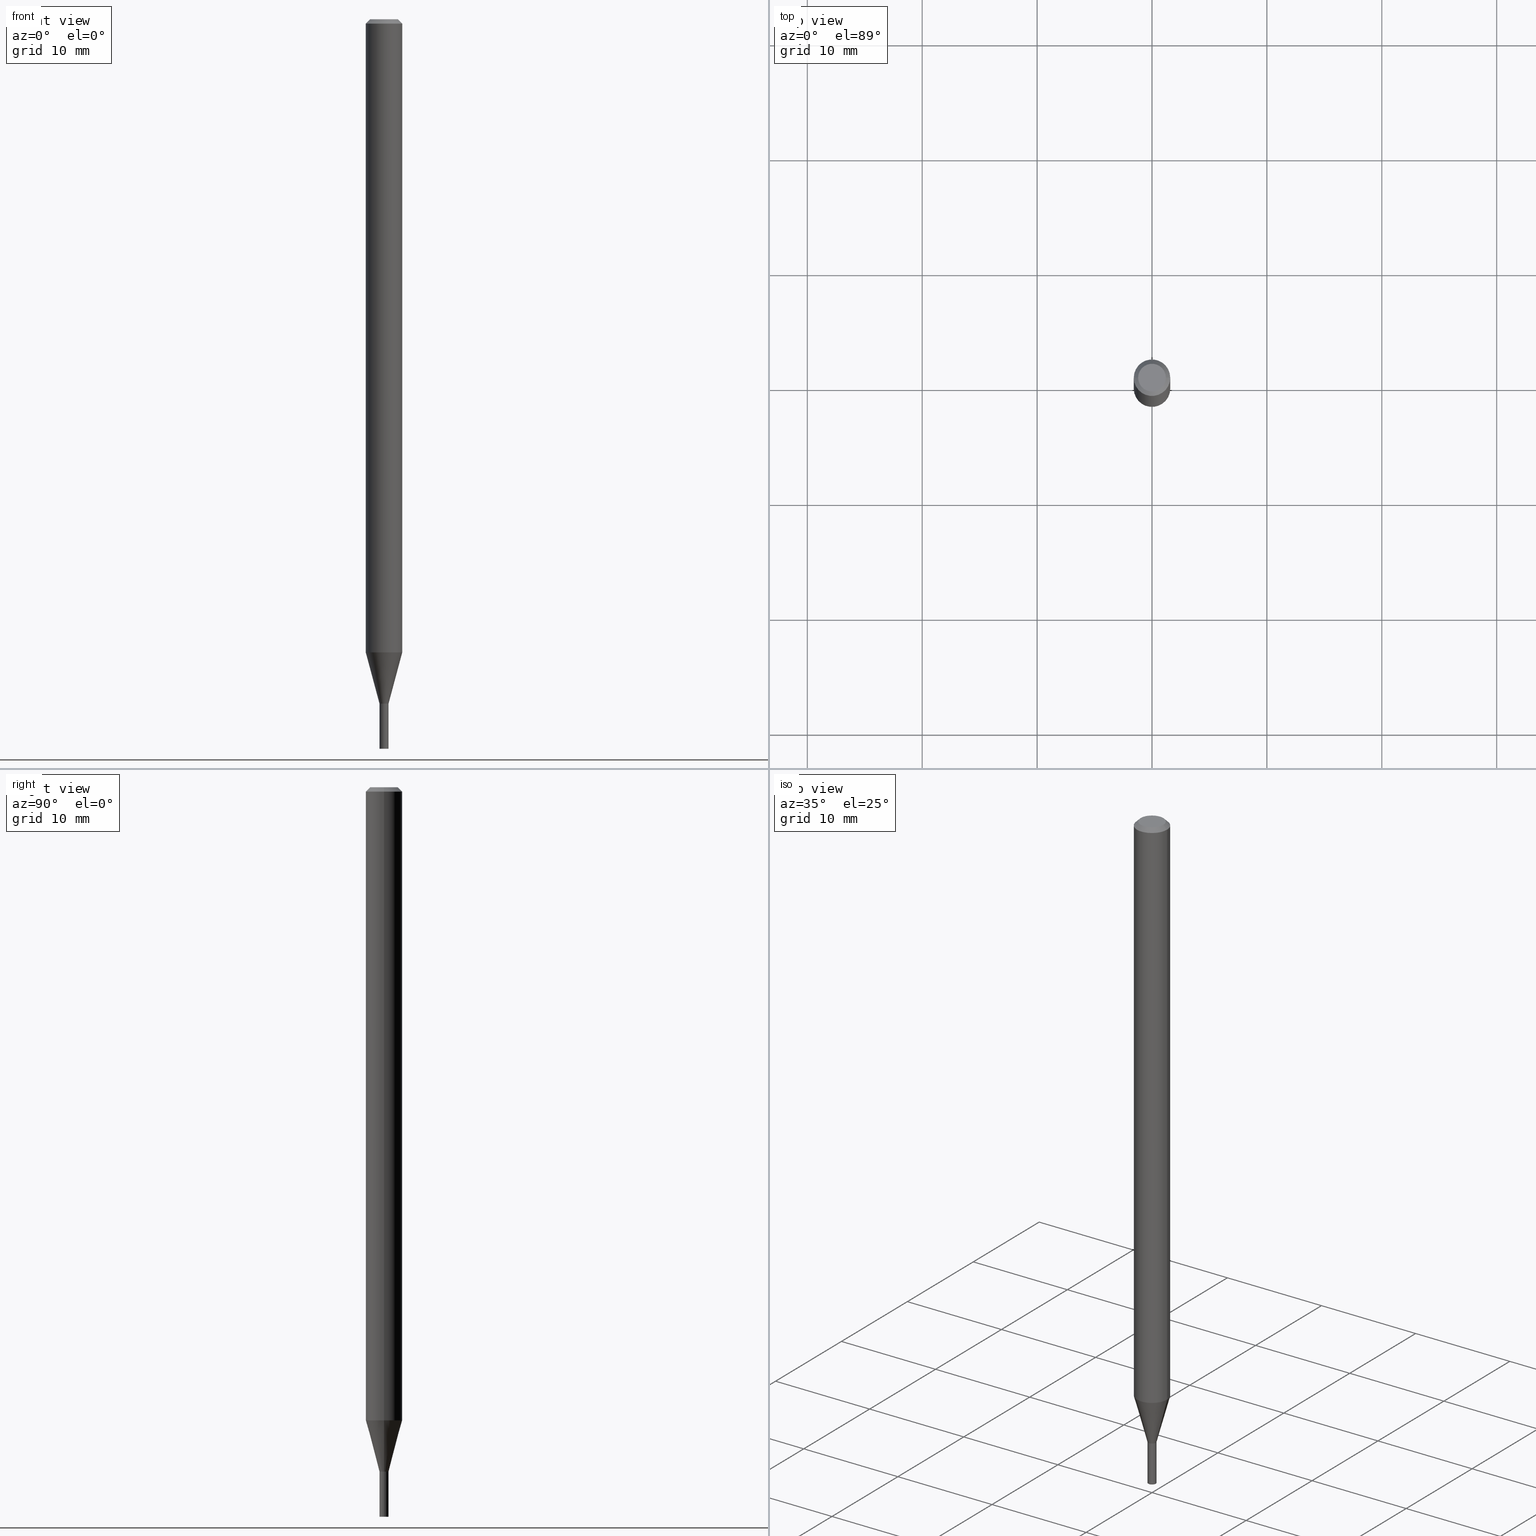
[diagram: canonical four-view strip — front | top / right | iso, engineering-drawing reading convention]
A machine part, canonical four-view strip (front | top / right | iso — engineering-drawing reading convention). The complete STEP part file that produces these views, byte-faithful:
ISO-10303-21;
HEADER;
FILE_DESCRIPTION (( 'STEP AP203' ),
    '1' );
FILE_NAME ('01232.STEP',
    '2024-03-20T00:20:06',
    ( '' ),
    ( '' ),
    'SwSTEP 2.0',
    'SolidWorks 2023',
    '' );
FILE_SCHEMA (( 'CONFIG_CONTROL_DESIGN' ));
ENDSEC;

DATA;
#1 = PRODUCT ( '01232', '01232', '', ( #280 ) ) ;
#2 = ORIENTED_EDGE ( 'NONE', *, *, #366, .F. ) ;
#3 = CARTESIAN_POINT ( 'NONE',  ( 5.733401616101054222E-29, -8.185777998917756034E-15, -2.344500000000000473 ) ) ;
#4 = CALENDAR_DATE ( 2024, 19, 3 ) ;
#5 = ORIENTED_EDGE ( 'NONE', *, *, #402, .T. ) ;
#6 = CIRCLE ( 'NONE', #264, 0.01550000000000019591 ) ;
#7 = DATE_AND_TIME ( #4, #94 ) ;
#8 = EDGE_LOOP ( 'NONE', ( #44, #70, #5, #215 ) ) ;
#9 = CARTESIAN_POINT ( 'NONE',  ( -0.04749999999999999362, 3.578768372314230227E-16, 1.123127311571377654E-15 ) ) ;
#10 = CALENDAR_DATE ( 2024, 19, 3 ) ;
#11 = ORIENTED_EDGE ( 'NONE', *, *, #51, .F. ) ;
#12 = DIRECTION ( 'NONE',  ( -2.445468806185136597E-29, 3.491481338843145583E-15, 1.000000000000000000 ) ) ;
#13 = EDGE_LOOP ( 'NONE', ( #432, #80, #224, #2 ) ) ;
#14 = DIRECTION ( 'NONE',  ( -2.438088387897960049E-29, 3.491481338843145188E-15, 1.000000000000000000 ) ) ;
#15 = CARTESIAN_POINT ( 'NONE',  ( 0.000000000000000000, 0.000000000000000000, 0.000000000000000000 ) ) ;
#16 = APPROVAL_PERSON_ORGANIZATION ( #100, #256, #112 ) ;
#17 = ORIENTED_EDGE ( 'NONE', *, *, #453, .T. ) ;
#18 = DIRECTION ( 'NONE',  ( 1.000000000000000000, -6.982962677686268288E-15, 0.000000000000000000 ) ) ;
#19 = FACE_OUTER_BOUND ( 'NONE', #425, .T. ) ;
#20 = CARTESIAN_POINT ( 'NONE',  ( 0.000000000000000000, 0.000000000000000000, 0.000000000000000000 ) ) ;
#21 = ADVANCED_FACE ( 'NONE', ( #19 ), #267, .T. ) ;
#22 = AXIS2_PLACEMENT_3D ( 'NONE', #24, #174, #131 ) ;
#23 = ORGANIZATION ( 'UNSPECIFIED', 'UNSPECIFIED', '' ) ;
#24 = CARTESIAN_POINT ( 'NONE',  ( 3.668203209277705088E-31, -5.237222008264718399E-17, -0.01499999999999999944 ) ) ;
#25 = APPROVAL_PERSON_ORGANIZATION ( #33, #130, #404 ) ;
#26 = CARTESIAN_POINT ( 'NONE',  ( 5.734624350504145902E-29, -8.187523739587176748E-15, -2.345000000000000195 ) ) ;
#27 = VERTEX_POINT ( 'NONE', #440 ) ;
#28 = ADVANCED_FACE ( 'NONE', ( #118 ), #168, .T. ) ;
#29 = DIRECTION ( 'NONE',  ( -2.445468806185136597E-29, 3.491481338843145583E-15, 1.000000000000000000 ) ) ;
#30 = AXIS2_PLACEMENT_3D ( 'NONE', #171, #29, #359 ) ;
#31 = PERSON_AND_ORGANIZATION_ROLE ( 'classification_officer' ) ;
#32 = ORIENTED_EDGE ( 'NONE', *, *, #390, .T. ) ;
#33 = PERSON_AND_ORGANIZATION ( #406, #23 ) ;
#34 = VERTEX_POINT ( 'NONE', #376 ) ;
#35 = ORIENTED_EDGE ( 'NONE', *, *, #41, .F. ) ;
#36 = CIRCLE ( 'NONE', #464, 0.01549999999999999989 ) ;
#37 = LINE ( 'NONE', #237, #54 ) ;
#38 = ORIENTED_EDGE ( 'NONE', *, *, #314, .T. ) ;
#39 = CARTESIAN_POINT ( 'NONE',  ( 0.01549999999999999989, -8.295759661091313125E-15, -2.345000000000000195 ) ) ;
#40 = DIRECTION ( 'NONE',  ( 1.000000000000000000, -6.982962677686265922E-15, 4.876176775795935793E-29 ) ) ;
#41 = EDGE_CURVE ( 'NONE', #391, #411, #304, .T. ) ;
#42 = DIRECTION ( 'NONE',  ( -2.445468806185136877E-29, 3.491481338843145188E-15, 1.000000000000000000 ) ) ;
#43 = CARTESIAN_POINT ( 'NONE',  ( -0.01550000000000019591, -8.075643874874940012E-15, -2.344500000000000473 ) ) ;
#44 = ORIENTED_EDGE ( 'NONE', *, *, #277, .F. ) ;
#45 = AXIS2_PLACEMENT_3D ( 'NONE', #310, #190, #307 ) ;
#46 = CONICAL_SURFACE ( 'NONE', #22, 0.06250000000000000000, 0.7853981633974109755 ) ;
#47 = CONICAL_SURFACE ( 'NONE', #153, 0.01549999999999964947, 0.2617993877991502405 ) ;
#48 = CYLINDRICAL_SURFACE ( 'NONE', #442, 0.01549999999999992183 ) ;
#49 = ORIENTED_EDGE ( 'NONE', *, *, #51, .T. ) ;
#50 = ORIENTED_EDGE ( 'NONE', *, *, #84, .F. ) ;
#51 = EDGE_CURVE ( 'NONE', #437, #27, #343, .T. ) ;
#52 = DIRECTION ( 'NONE',  ( -2.445468806185136597E-29, 3.491481338843145583E-15, 1.000000000000000000 ) ) ;
#53 = ORIENTED_EDGE ( 'NONE', *, *, #216, .F. ) ;
#54 = VECTOR ( 'NONE', #450, 39.37007874015748143 ) ;
#55 = DIRECTION ( 'NONE',  ( 1.000000000000000000, -6.982962677686267499E-15, 5.108144071313017768E-29 ) ) ;
#56 = DIRECTION ( 'NONE',  ( 1.000000000000000000, -6.982962677686271444E-15, 0.000000000000000000 ) ) ;
#57 = CARTESIAN_POINT ( 'NONE',  ( -0.06250000000000000000, -3.369644704854179855E-15, -0.01499999999999999944 ) ) ;
#58 = DIRECTION ( 'NONE',  ( 1.000000000000000000, -6.982962677686238312E-15, 0.000000000000000000 ) ) ;
#59 = ORIENTED_EDGE ( 'NONE', *, *, #41, .T. ) ;
#60 = ADVANCED_FACE ( 'NONE', ( #157 ), #254, .T. ) ;
#61 = LINE ( 'NONE', #429, #74 ) ;
#62 = EDGE_CURVE ( 'NONE', #34, #184, #325, .T. ) ;
#63 = FACE_OUTER_BOUND ( 'NONE', #106, .T. ) ;
#64 = DIRECTION ( 'NONE',  ( -2.445468806185136597E-29, 3.491481338843145583E-15, 1.000000000000000000 ) ) ;
#65 = CALENDAR_DATE ( 2024, 19, 3 ) ;
#66 = EDGE_LOOP ( 'NONE', ( #68, #160 ) ) ;
#67 = COORDINATED_UNIVERSAL_TIME_OFFSET ( 5, 0, .BEHIND. ) ;
#68 = ORIENTED_EDGE ( 'NONE', *, *, #390, .F. ) ;
#69 = ADVANCED_FACE ( 'NONE', ( #265 ), #83, .F. ) ;
#70 = ORIENTED_EDGE ( 'NONE', *, *, #465, .T. ) ;
#71 = EDGE_CURVE ( 'NONE', #222, #288, #421, .T. ) ;
#72 = ORIENTED_EDGE ( 'NONE', *, *, #205, .F. ) ;
#73 = AXIS2_PLACEMENT_3D ( 'NONE', #339, #219, #239 ) ;
#74 = VECTOR ( 'NONE', #129, 39.37007874015748143 ) ;
#75 = DIRECTION ( 'NONE',  ( -2.445468806185136597E-29, 3.491481338843145583E-15, 1.000000000000000000 ) ) ;
#76 = CC_DESIGN_DATE_AND_TIME_ASSIGNMENT ( #7, #252, ( #410 ) ) ;
#77 = CALENDAR_DATE ( 2024, 19, 3 ) ;
#78 = CARTESIAN_POINT ( 'NONE',  ( 5.734624350504144781E-29, -8.187523739587176748E-15, -2.345000000000000195 ) ) ;
#79 = DIRECTION ( 'NONE',  ( 2.438088387897960049E-29, -3.491481338843145188E-15, -1.000000000000000000 ) ) ;
#80 = ORIENTED_EDGE ( 'NONE', *, *, #159, .T. ) ;
#81 = FACE_OUTER_BOUND ( 'NONE', #245, .T. ) ;
#82 = FACE_OUTER_BOUND ( 'NONE', #253, .T. ) ;
#83 = PLANE ( 'NONE',  #73 ) ;
#84 = EDGE_CURVE ( 'NONE', #27, #109, #380, .T. ) ;
#85 = PLANE ( 'NONE',  #303 ) ;
#86 = AXIS2_PLACEMENT_3D ( 'NONE', #15, #12, #415 ) ;
#87 = EDGE_LOOP ( 'NONE', ( #218, #124, #286, #149 ) ) ;
#88 = LOCAL_TIME ( 20, 20, 6.000000000000000000, #294 ) ;
#89 = CARTESIAN_POINT ( 'NONE',  ( 0.01499999999999999944, -8.292268179752470118E-15, -2.345000000000000195 ) ) ;
#90 = VERTEX_POINT ( 'NONE', #114 ) ;
#91 = DIRECTION ( 'NONE',  ( -2.445468806185136597E-29, 3.491481338843145583E-15, 1.000000000000000000 ) ) ;
#92 = DIRECTION ( 'NONE',  ( -0.7071067811865211494, 2.468850131081980565E-15, -0.7071067811865738850 ) ) ;
#93 =( GEOMETRIC_REPRESENTATION_CONTEXT ( 3 ) GLOBAL_UNCERTAINTY_ASSIGNED_CONTEXT ( ( #209 ) ) GLOBAL_UNIT_ASSIGNED_CONTEXT ( ( #97, #392, #167 ) ) REPRESENTATION_CONTEXT ( 'NONE', 'WORKASPACE' ) );
#94 = LOCAL_TIME ( 20, 20, 6.000000000000000000, #375 ) ;
#95 = PERSON_AND_ORGANIZATION ( #406, #23 ) ;
#96 = ORIENTED_EDGE ( 'NONE', *, *, #202, .F. ) ;
#97 =( CONVERSION_BASED_UNIT ( 'INCH', #315 ) LENGTH_UNIT ( ) NAMED_UNIT ( #452 ) );
#98 = EDGE_CURVE ( 'NONE', #184, #34, #350, .T. ) ;
#99 = AXIS2_PLACEMENT_3D ( 'NONE', #20, #119, #266 ) ;
#100 = PERSON_AND_ORGANIZATION ( #406, #23 ) ;
#101 = APPLICATION_CONTEXT ( 'configuration controlled 3d designs of mechanical parts and assemblies' ) ;
#102 = PERSON_AND_ORGANIZATION ( #406, #23 ) ;
#103 = EDGE_LOOP ( 'NONE', ( #365, #152, #347, #236 ) ) ;
#104 = PRODUCT_RELATED_PRODUCT_CATEGORY ( 'detail', '', ( #1 ) ) ;
#105 = CIRCLE ( 'NONE', #428, 0.04749999999999999362 ) ;
#106 = EDGE_LOOP ( 'NONE', ( #381, #132, #17, #72 ) ) ;
#107 = ORIENTED_EDGE ( 'NONE', *, *, #297, .F. ) ;
#108 = ADVANCED_FACE ( 'NONE', ( #439 ), #225, .F. ) ;
#109 = VERTEX_POINT ( 'NONE', #43 ) ;
#110 = CC_DESIGN_PERSON_AND_ORGANIZATION_ASSIGNMENT ( #221, #148, ( #178 ) ) ;
#111 = DIRECTION ( 'NONE',  ( -1.000000000000000000, 6.982962677686265922E-15, -4.876176775795935793E-29 ) ) ;
#112 = APPROVAL_ROLE ( '' ) ;
#113 = DIRECTION ( 'NONE',  ( 1.000000000000000000, -6.982962677686262766E-15, 0.000000000000000000 ) ) ;
#114 = CARTESIAN_POINT ( 'NONE',  ( 0.01549999999999999989, -8.836939268612002897E-15, -2.500000000000000000 ) ) ;
#115 = EDGE_LOOP ( 'NONE', ( #107, #59, #38, #372 ) ) ;
#116 = DIRECTION ( 'NONE',  ( -2.438088387897960049E-29, 3.491481338843145188E-15, 1.000000000000000000 ) ) ;
#117 = ADVANCED_FACE ( 'NONE', ( #374 ), #443, .F. ) ;
#118 = FACE_OUTER_BOUND ( 'NONE', #13, .T. ) ;
#119 = DIRECTION ( 'NONE',  ( -2.445468806185136597E-29, 3.491481338843145583E-15, 1.000000000000000000 ) ) ;
#120 = AXIS2_PLACEMENT_3D ( 'NONE', #300, #447, #444 ) ;
#121 = CIRCLE ( 'NONE', #255, 0.06250000000000000000 ) ;
#122 = CC_DESIGN_SECURITY_CLASSIFICATION ( #410, ( #313 ) ) ;
#123 = FACE_OUTER_BOUND ( 'NONE', #66, .T. ) ;
#124 = ORIENTED_EDGE ( 'NONE', *, *, #277, .T. ) ;
#125 = CARTESIAN_POINT ( 'NONE',  ( -0.01549999999999964947, -8.077389615544363883E-15, -2.345000000000000195 ) ) ;
#126 = ADVANCED_FACE ( 'NONE', ( #123 ), #384, .F. ) ;
#127 = CARTESIAN_POINT ( 'NONE',  ( 5.734624350504145902E-29, -8.187523739587176748E-15, -2.345000000000000195 ) ) ;
#128 = AXIS2_PLACEMENT_3D ( 'NONE', #324, #204, #58 ) ;
#129 = DIRECTION ( 'NONE',  ( -2.445468806185136877E-29, 3.491481338843145188E-15, 1.000000000000000000 ) ) ;
#130 = APPROVAL ( #263, 'UNSPECIFIED' ) ;
#131 = DIRECTION ( 'NONE',  ( -1.000000000000000000, 6.982962677686266711E-15, 0.000000000000000000 ) ) ;
#132 = ORIENTED_EDGE ( 'NONE', *, *, #98, .T. ) ;
#133 = DIRECTION ( 'NONE',  ( 0.000000000000000000, 0.000000000000000000, 1.000000000000000000 ) ) ;
#134 = AXIS2_PLACEMENT_3D ( 'NONE', #306, #228, #409 ) ;
#135 = CIRCLE ( 'NONE', #183, 0.01549999999999964947 ) ;
#136 =( LENGTH_UNIT ( ) NAMED_UNIT ( * ) SI_UNIT ( $, .METRE. ) );
#137 = COORDINATED_UNIVERSAL_TIME_OFFSET ( 5, 0, .BEHIND. ) ;
#138 = ORIENTED_EDGE ( 'NONE', *, *, #145, .T. ) ;
#139 = DIRECTION ( 'NONE',  ( 1.000000000000000000, -6.982962677686267499E-15, 5.108144071313017768E-29 ) ) ;
#140 = VECTOR ( 'NONE', #92, 39.37007874015748143 ) ;
#141 = CALENDAR_DATE ( 2024, 19, 3 ) ;
#142 = VECTOR ( 'NONE', #340, 39.37007874015748143 ) ;
#143 = EDGE_LOOP ( 'NONE', ( #259, #206 ) ) ;
#144 = APPROVAL_ROLE ( '' ) ;
#145 = EDGE_CURVE ( 'NONE', #146, #319, #361, .T. ) ;
#146 = VERTEX_POINT ( 'NONE', #89 ) ;
#147 = LINE ( 'NONE', #298, #176 ) ;
#148 = PERSON_AND_ORGANIZATION_ROLE ( 'creator' ) ;
#149 = ORIENTED_EDGE ( 'NONE', *, *, #402, .F. ) ;
#150 = CARTESIAN_POINT ( 'NONE',  ( 3.668203209277705088E-31, -5.237222008264718399E-17, -0.01499999999999999944 ) ) ;
#151 = DIRECTION ( 'NONE',  ( -2.445468806185136597E-29, 3.491481338843145583E-15, 1.000000000000000000 ) ) ;
#152 = ORIENTED_EDGE ( 'NONE', *, *, #462, .T. ) ;
#153 = AXIS2_PLACEMENT_3D ( 'NONE', #196, #260, #191 ) ;
#154 = CARTESIAN_POINT ( 'NONE',  ( 6.113672015462842613E-29, -8.728703347107864943E-15, -2.500000000000000000 ) ) ;
#155 = CC_DESIGN_APPROVAL ( #130, ( #313 ) ) ;
#156 = DIRECTION ( 'NONE',  ( 1.000000000000000000, -6.982962677686266711E-15, 4.876176775795935793E-29 ) ) ;
#157 = FACE_OUTER_BOUND ( 'NONE', #257, .T. ) ;
#158 = FACE_OUTER_BOUND ( 'NONE', #401, .T. ) ;
#159 = EDGE_CURVE ( 'NONE', #319, #146, #248, .T. ) ;
#160 = ORIENTED_EDGE ( 'NONE', *, *, #220, .F. ) ;
#161 = DIRECTION ( 'NONE',  ( -2.445468806185136597E-29, 3.491481338843145583E-15, 1.000000000000000000 ) ) ;
#162 = CLOSED_SHELL ( 'NONE', ( #201, #126, #21, #69 ) ) ;
#163 = AXIS2_PLACEMENT_3D ( 'NONE', #312, #161, #418 ) ;
#164 = CARTESIAN_POINT ( 'NONE',  ( -0.01549999999999999989, -8.347979419304705613E-15, -2.345000000000000195 ) ) ;
#165 = CC_DESIGN_PERSON_AND_ORGANIZATION_ASSIGNMENT ( #214, #31, ( #410 ) ) ;
#166 = ADVANCED_BREP_SHAPE_REPRESENTATION ( '01232', ( #426, #422, #342 ), #93 ) ;
#167 =( NAMED_UNIT ( * ) SI_UNIT ( $, .STERADIAN. ) SOLID_ANGLE_UNIT ( ) );
#168 = CONICAL_SURFACE ( 'NONE', #232, 0.01499999999999999944, 0.7853981633980181565 ) ;
#169 = CIRCLE ( 'NONE', #163, 0.01549999999999999989 ) ;
#170 = ADVANCED_FACE ( 'NONE', ( #189 ), #446, .T. ) ;
#171 = CARTESIAN_POINT ( 'NONE',  ( 0.000000000000000000, 0.000000000000000000, 0.000000000000000000 ) ) ;
#172 = ORIENTED_EDGE ( 'NONE', *, *, #336, .F. ) ;
#173 = APPLICATION_PROTOCOL_DEFINITION ( 'international standard', 'config_control_design', 1994, #101 ) ;
#174 = DIRECTION ( 'NONE',  ( 2.445468806185136597E-29, -3.491481338843145583E-15, -1.000000000000000000 ) ) ;
#175 = VECTOR ( 'NONE', #230, 39.37007874015748143 ) ;
#176 = VECTOR ( 'NONE', #274, 39.37007874015748854 ) ;
#177 = PERSON_AND_ORGANIZATION_ROLE ( 'design_supplier' ) ;
#178 = PRODUCT_DEFINITION ( 'UNKNOWN', '', #313, #362 ) ;
#179 = APPROVAL_DATE_TIME ( #363, #345 ) ;
#180 = ORIENTED_EDGE ( 'NONE', *, *, #159, .F. ) ;
#181 = PERSON_AND_ORGANIZATION_ROLE ( 'creator' ) ;
#182 = EDGE_LOOP ( 'NONE', ( #138, #367, #50, #198 ) ) ;
#183 = AXIS2_PLACEMENT_3D ( 'NONE', #127, #463, #247 ) ;
#184 = VERTEX_POINT ( 'NONE', #268 ) ;
#185 = CC_DESIGN_APPROVAL ( #345, ( #410 ) ) ;
#186 = DIRECTION ( 'NONE',  ( 1.000000000000000000, -6.982962677686266711E-15, 0.000000000000000000 ) ) ;
#187 = ORIENTED_EDGE ( 'NONE', *, *, #336, .T. ) ;
#188 = DIRECTION ( 'NONE',  ( 1.000000000000000000, -6.982962677686268288E-15, 0.000000000000000000 ) ) ;
#189 = FACE_OUTER_BOUND ( 'NONE', #103, .T. ) ;
#190 = DIRECTION ( 'NONE',  ( 2.445468806185136597E-29, -3.491481338843145583E-15, -1.000000000000000000 ) ) ;
#191 = DIRECTION ( 'NONE',  ( 1.000000000000000000, -6.982962677686271444E-15, 0.000000000000000000 ) ) ;
#192 = DIRECTION ( 'NONE',  ( 1.000000000000000000, -6.982962677686268288E-15, 0.000000000000000000 ) ) ;
#193 = CARTESIAN_POINT ( 'NONE',  ( 0.06250000000000000000, -4.811533449433679005E-16, -0.01499999999999999944 ) ) ;
#194 = CIRCLE ( 'NONE', #207, 0.06250000000000000000 ) ;
#195 = ADVANCED_FACE ( 'NONE', ( #82 ), #48, .F. ) ;
#196 = CARTESIAN_POINT ( 'NONE',  ( 5.734624350504145902E-29, -8.187523739587176748E-15, -2.345000000000000195 ) ) ;
#197 = DIRECTION ( 'NONE',  ( -2.445468806185136597E-29, 3.491481338843145583E-15, 1.000000000000000000 ) ) ;
#198 = ORIENTED_EDGE ( 'NONE', *, *, #250, .F. ) ;
#199 = VERTEX_POINT ( 'NONE', #346 ) ;
#200 = DIRECTION ( 'NONE',  ( -2.445468806185136597E-29, 3.491481338843145583E-15, 1.000000000000000000 ) ) ;
#201 = ADVANCED_FACE ( 'NONE', ( #158 ), #412, .T. ) ;
#202 = EDGE_CURVE ( 'NONE', #199, #296, #37, .T. ) ;
#203 = DIRECTION ( 'NONE',  ( 1.000000000000000000, -6.982962677686276177E-15, 0.000000000000000000 ) ) ;
#204 = DIRECTION ( 'NONE',  ( -2.445468806185136597E-29, 3.491481338843145583E-15, 1.000000000000000000 ) ) ;
#205 = EDGE_CURVE ( 'NONE', #288, #411, #121, .T. ) ;
#206 = ORIENTED_EDGE ( 'NONE', *, *, #297, .T. ) ;
#207 = AXIS2_PLACEMENT_3D ( 'NONE', #150, #414, #445 ) ;
#208 = FACE_OUTER_BOUND ( 'NONE', #115, .T. ) ;
#209 = UNCERTAINTY_MEASURE_WITH_UNIT (LENGTH_MEASURE( 1.000000000000000082E-05 ), #97, 'distance_accuracy_value', 'NONE');
#210 = EDGE_CURVE ( 'NONE', #460, #109, #448, .T. ) ;
#211 = CARTESIAN_POINT ( 'NONE',  ( 0.04749999999999999362, -4.035134999187558409E-16, 1.123127311571382584E-15 ) ) ;
#212 = CIRCLE ( 'NONE', #276, 0.01549999999999964947 ) ;
#213 = LOCAL_TIME ( 20, 20, 6.000000000000000000, #137 ) ;
#214 = PERSON_AND_ORGANIZATION ( #406, #23 ) ;
#215 = ORIENTED_EDGE ( 'NONE', *, *, #98, .F. ) ;
#216 = EDGE_CURVE ( 'NONE', #337, #296, #169, .T. ) ;
#217 = DIRECTION ( 'NONE',  ( -2.445468806185136597E-29, 3.491481338843145583E-15, 1.000000000000000000 ) ) ;
#218 = ORIENTED_EDGE ( 'NONE', *, *, #449, .T. ) ;
#219 = DIRECTION ( 'NONE',  ( 2.438088387897960049E-29, -3.491481338843145188E-15, -1.000000000000000000 ) ) ;
#220 = EDGE_CURVE ( 'NONE', #199, #90, #36, .T. ) ;
#221 = PERSON_AND_ORGANIZATION ( #406, #23 ) ;
#222 = VERTEX_POINT ( 'NONE', #9 ) ;
#223 = VECTOR ( 'NONE', #388, 39.37007874015748143 ) ;
#224 = ORIENTED_EDGE ( 'NONE', *, *, #250, .T. ) ;
#225 = PLANE ( 'NONE',  #386 ) ;
#226 = APPROVAL_DATE_TIME ( #398, #256 ) ;
#227 = DIRECTION ( 'NONE',  ( 1.000000000000000000, -6.982962677686268288E-15, 0.000000000000000000 ) ) ;
#228 = DIRECTION ( 'NONE',  ( -2.445468806185136597E-29, 3.491481338843145583E-15, 1.000000000000000000 ) ) ;
#229 = EDGE_CURVE ( 'NONE', #319, #109, #147, .T. ) ;
#230 = DIRECTION ( 'NONE',  ( 0.7071067811865211494, -7.319954787623167693E-15, -0.7071067811865738850 ) ) ;
#231 = CARTESIAN_POINT ( 'NONE',  ( 0.000000000000000000, 0.000000000000000000, 0.000000000000000000 ) ) ;
#232 = AXIS2_PLACEMENT_3D ( 'NONE', #78, #413, #227 ) ;
#233 = EDGE_LOOP ( 'NONE', ( #311, #434, #333, #11 ) ) ;
#234 = VECTOR ( 'NONE', #389, 39.37007874015748143 ) ;
#235 = CARTESIAN_POINT ( 'NONE',  ( 5.733401616101054222E-29, -8.185777998917756034E-15, -2.344500000000000473 ) ) ;
#236 = ORIENTED_EDGE ( 'NONE', *, *, #453, .F. ) ;
#237 = CARTESIAN_POINT ( 'NONE',  ( -0.01549999999999999989, 1.101341240428155280E-16, -7.624349389895103058E-31 ) ) ;
#238 = CARTESIAN_POINT ( 'NONE',  ( -0.06250000000000000000, 3.840629472727444916E-16, -0.01499999999999999944 ) ) ;
#239 = DIRECTION ( 'NONE',  ( -1.000000000000000000, 6.982962677686265922E-15, -4.876176775795935793E-29 ) ) ;
#240 = AXIS2_PLACEMENT_3D ( 'NONE', #407, #435, #188 ) ;
#241 = EDGE_CURVE ( 'NONE', #222, #391, #105, .T. ) ;
#242 = CARTESIAN_POINT ( 'NONE',  ( 0.01549999999999964947, -8.295759661091311547E-15, -2.345000000000000195 ) ) ;
#243 = PERSON_AND_ORGANIZATION_ROLE ( 'design_owner' ) ;
#244 = CC_DESIGN_PERSON_AND_ORGANIZATION_ASSIGNMENT ( #102, #181, ( #313 ) ) ;
#245 = EDGE_LOOP ( 'NONE', ( #399, #180 ) ) ;
#246 = CARTESIAN_POINT ( 'NONE',  ( -2.746572805822384744E-44, 3.921378049496544864E-30, 1.123127311571380021E-15 ) ) ;
#247 = DIRECTION ( 'NONE',  ( 1.000000000000000000, -6.982962677686271444E-15, 0.000000000000000000 ) ) ;
#248 = CIRCLE ( 'NONE', #355, 0.01499999999999999944 ) ;
#249 = CYLINDRICAL_SURFACE ( 'NONE', #30, 0.06250000000000000000 ) ;
#250 = EDGE_CURVE ( 'NONE', #146, #27, #424, .T. ) ;
#251 = PRODUCT_DEFINITION_SHAPE ( 'NONE', 'NONE',  #178 ) ;
#252 = DATE_TIME_ROLE ( 'classification_date' ) ;
#253 = EDGE_LOOP ( 'NONE', ( #364, #331, #49, #431 ) ) ;
#254 = CONICAL_SURFACE ( 'NONE', #45, 0.06250000000000000000, 0.7853981633974109755 ) ;
#255 = AXIS2_PLACEMENT_3D ( 'NONE', #262, #308, #186 ) ;
#256 = APPROVAL ( #285, 'UNSPECIFIED' ) ;
#257 = EDGE_LOOP ( 'NONE', ( #35, #329, #383, #295 ) ) ;
#258 = PERSON_AND_ORGANIZATION ( #406, #23 ) ;
#259 = ORIENTED_EDGE ( 'NONE', *, *, #241, .T. ) ;
#260 = DIRECTION ( 'NONE',  ( -2.445468806185136597E-29, 3.491481338843145583E-15, 1.000000000000000000 ) ) ;
#261 = ORIENTED_EDGE ( 'NONE', *, *, #458, .F. ) ;
#262 = CARTESIAN_POINT ( 'NONE',  ( 3.668203209277705088E-31, -5.237222008264718399E-17, -0.01499999999999999944 ) ) ;
#263 = APPROVAL_STATUS ( 'not_yet_approved' ) ;
#264 = AXIS2_PLACEMENT_3D ( 'NONE', #235, #438, #203 ) ;
#265 = FACE_OUTER_BOUND ( 'NONE', #405, .T. ) ;
#266 = DIRECTION ( 'NONE',  ( 1.000000000000000000, -6.982962677686266711E-15, 4.876176775795935232E-29 ) ) ;
#267 = CYLINDRICAL_SURFACE ( 'NONE', #120, 0.01549999999999999989 ) ;
#268 = CARTESIAN_POINT ( 'NONE',  ( -0.06249999999999997918, -7.131006399475775641E-15, -2.169593612044262265 ) ) ;
#269 = CARTESIAN_POINT ( 'NONE',  ( 5.305673500352780088E-29, -7.575095609325836680E-15, -2.169593612044262265 ) ) ;
#270 = LINE ( 'NONE', #417, #142 ) ;
#271 = CARTESIAN_POINT ( 'NONE',  ( -0.01549999999999992183, 1.101341240428149734E-16, -7.624349389895065398E-31 ) ) ;
#272 = AXIS2_PLACEMENT_3D ( 'NONE', #154, #64, #454 ) ;
#273 = DIRECTION ( 'NONE',  ( 1.000000000000000000, -6.982962677686267499E-15, 4.876176775795935793E-29 ) ) ;
#274 = DIRECTION ( 'NONE',  ( -0.7071067811869503617, 7.493145998871808820E-15, 0.7071067811861444508 ) ) ;
#275 = AXIS2_PLACEMENT_3D ( 'NONE', #3, #75, #302 ) ;
#276 = AXIS2_PLACEMENT_3D ( 'NONE', #26, #395, #56 ) ;
#277 = EDGE_CURVE ( 'NONE', #460, #184, #320, .T. ) ;
#278 = APPLICATION_PROTOCOL_DEFINITION ( 'international standard', 'config_control_design', 1994, #321 ) ;
#279 = ORIENTED_EDGE ( 'NONE', *, *, #202, .T. ) ;
#280 = MECHANICAL_CONTEXT ( 'NONE', #321, 'mechanical' ) ;
#281 = CC_DESIGN_PERSON_AND_ORGANIZATION_ASSIGNMENT ( #95, #243, ( #1 ) ) ;
#282 = AXIS2_PLACEMENT_3D ( 'NONE', #269, #416, #113 ) ;
#283 = VECTOR ( 'NONE', #357, 39.37007874015748143 ) ;
#284 = CARTESIAN_POINT ( 'NONE',  ( -0.01549999999999964947, -7.604198007510069762E-15, -2.345000000000000195 ) ) ;
#285 = APPROVAL_STATUS ( 'not_yet_approved' ) ;
#286 = ORIENTED_EDGE ( 'NONE', *, *, #62, .F. ) ;
#287 = DATE_TIME_ROLE ( 'creation_date' ) ;
#288 = VERTEX_POINT ( 'NONE', #57 ) ;
#289 = FACE_OUTER_BOUND ( 'NONE', #87, .T. ) ;
#290 = CLOSED_SHELL ( 'NONE', ( #117, #370, #396, #170, #309, #322, #400, #60, #108, #353, #28, #195 ) ) ;
#291 = CONICAL_SURFACE ( 'NONE', #433, 0.01549999999999964947, 0.2617993877991502405 ) ;
#292 = LOCAL_TIME ( 20, 20, 6.000000000000000000, #299 ) ;
#293 = CC_DESIGN_PERSON_AND_ORGANIZATION_ASSIGNMENT ( #258, #177, ( #313 ) ) ;
#294 = COORDINATED_UNIVERSAL_TIME_OFFSET ( 5, 0, .BEHIND. ) ;
#295 = ORIENTED_EDGE ( 'NONE', *, *, #205, .T. ) ;
#296 = VERTEX_POINT ( 'NONE', #164 ) ;
#297 = EDGE_CURVE ( 'NONE', #391, #222, #408, .T. ) ;
#298 = CARTESIAN_POINT ( 'NONE',  ( -0.01499999999999999944, -8.080942329223160837E-15, -2.345000000000000195 ) ) ;
#299 = COORDINATED_UNIVERSAL_TIME_OFFSET ( 5, 0, .BEHIND. ) ;
#300 = CARTESIAN_POINT ( 'NONE',  ( 0.000000000000000000, 0.000000000000000000, 0.000000000000000000 ) ) ;
#301 = FACE_OUTER_BOUND ( 'NONE', #8, .T. ) ;
#302 = DIRECTION ( 'NONE',  ( 1.000000000000000000, -6.982962677686276177E-15, 0.000000000000000000 ) ) ;
#303 = AXIS2_PLACEMENT_3D ( 'NONE', #382, #14, #344 ) ;
#304 = LINE ( 'NONE', #193, #175 ) ;
#305 = CC_DESIGN_APPROVAL ( #256, ( #178 ) ) ;
#306 = CARTESIAN_POINT ( 'NONE',  ( 5.305673500352780088E-29, -7.575095609325836680E-15, -2.169593612044262265 ) ) ;
#307 = DIRECTION ( 'NONE',  ( -1.000000000000000000, 6.982962677686266711E-15, 0.000000000000000000 ) ) ;
#308 = DIRECTION ( 'NONE',  ( -2.445468806185136597E-29, 3.491481338843145583E-15, 1.000000000000000000 ) ) ;
#309 = ADVANCED_FACE ( 'NONE', ( #289 ), #47, .T. ) ;
#310 = CARTESIAN_POINT ( 'NONE',  ( 3.668203209277705088E-31, -5.237222008264718399E-17, -0.01499999999999999944 ) ) ;
#311 = ORIENTED_EDGE ( 'NONE', *, *, #465, .F. ) ;
#312 = CARTESIAN_POINT ( 'NONE',  ( 5.734624350504145902E-29, -8.187523739587176748E-15, -2.345000000000000195 ) ) ;
#313 = PRODUCT_DEFINITION_FORMATION_WITH_SPECIFIED_SOURCE ( 'ANY', '', #1, .NOT_KNOWN. ) ;
#314 = EDGE_CURVE ( 'NONE', #411, #288, #194, .T. ) ;
#315 = LENGTH_MEASURE_WITH_UNIT ( LENGTH_MEASURE( 0.02539999999999999897 ), #136 );
#316 = CIRCLE ( 'NONE', #128, 0.01549999999999999989 ) ;
#317 = DIRECTION ( 'NONE',  ( 0.7071067811869503617, -2.468850131086477072E-15, 0.7071067811861444508 ) ) ;
#318 = CARTESIAN_POINT ( 'NONE',  ( 0.06250000000000000000, -4.888073874380388472E-16, -0.01499999999999999944 ) ) ;
#319 = VERTEX_POINT ( 'NONE', #334 ) ;
#320 = LINE ( 'NONE', #125, #223 ) ;
#321 = APPLICATION_CONTEXT ( 'configuration controlled 3d designs of mechanical parts and assemblies' ) ;
#322 = ADVANCED_FACE ( 'NONE', ( #301 ), #291, .T. ) ;
#323 = CARTESIAN_POINT ( 'NONE',  ( 0.000000000000000000, 0.000000000000000000, 0.000000000000000000 ) ) ;
#324 = CARTESIAN_POINT ( 'NONE',  ( 5.734624350504145902E-29, -8.187523739587176748E-15, -2.345000000000000195 ) ) ;
#325 = CIRCLE ( 'NONE', #282, 0.06250000000000000000 ) ;
#326 = VECTOR ( 'NONE', #317, 39.37007874015748854 ) ;
#327 = PERSON_AND_ORGANIZATION ( #406, #23 ) ;
#328 = SHAPE_DEFINITION_REPRESENTATION ( #251, #166 ) ;
#329 = ORIENTED_EDGE ( 'NONE', *, *, #241, .F. ) ;
#330 = SECURITY_CLASSIFICATION_LEVEL ( 'unclassified' ) ;
#331 = ORIENTED_EDGE ( 'NONE', *, *, #449, .F. ) ;
#332 = DATE_AND_TIME ( #77, #371 ) ;
#333 = ORIENTED_EDGE ( 'NONE', *, *, #366, .T. ) ;
#334 = CARTESIAN_POINT ( 'NONE',  ( -0.01499999999999999944, -8.078293102049050425E-15, -2.345000000000000195 ) ) ;
#335 = CARTESIAN_POINT ( 'NONE',  ( 6.113672015462842613E-29, -8.728703347107864943E-15, -2.500000000000000000 ) ) ;
#336 = EDGE_CURVE ( 'NONE', #90, #337, #270, .T. ) ;
#337 = VERTEX_POINT ( 'NONE', #39 ) ;
#338 = DIRECTION ( 'NONE',  ( -2.445468806185136877E-29, 3.491481338843145188E-15, 1.000000000000000000 ) ) ;
#339 = CARTESIAN_POINT ( 'NONE',  ( 1.082359215041944689E-16, 0.01549999999999181199, -2.345000000000000195 ) ) ;
#340 = DIRECTION ( 'NONE',  ( -2.445468806185136877E-29, 3.491481338843145188E-15, 1.000000000000000000 ) ) ;
#341 = CARTESIAN_POINT ( 'NONE',  ( 5.734624350504144781E-29, -8.187523739587176748E-15, -2.345000000000000195 ) ) ;
#342 = AXIS2_PLACEMENT_3D ( 'NONE', #323, #133, #461 ) ;
#343 = LINE ( 'NONE', #378, #455 ) ;
#344 = DIRECTION ( 'NONE',  ( 1.000000000000000000, -6.982962677686265922E-15, 4.876176775795935793E-29 ) ) ;
#345 = APPROVAL ( #466, 'UNSPECIFIED' ) ;
#346 = CARTESIAN_POINT ( 'NONE',  ( -0.01549999999999999989, -8.347979419304705613E-15, -2.500000000000000000 ) ) ;
#347 = ORIENTED_EDGE ( 'NONE', *, *, #314, .F. ) ;
#348 = DIRECTION ( 'NONE',  ( 1.000000000000000000, -6.982962677686301420E-15, 0.000000000000000000 ) ) ;
#349 = DIRECTION ( 'NONE',  ( -2.445468806185136597E-29, 3.491481338843145583E-15, 1.000000000000000000 ) ) ;
#350 = CIRCLE ( 'NONE', #134, 0.06250000000000000000 ) ;
#351 = AXIS2_PLACEMENT_3D ( 'NONE', #231, #151, #156 ) ;
#352 = FACE_OUTER_BOUND ( 'NONE', #182, .T. ) ;
#353 = ADVANCED_FACE ( 'NONE', ( #81 ), #85, .F. ) ;
#354 = CARTESIAN_POINT ( 'NONE',  ( 0.01549999999999964947, -8.295759661091311547E-15, -2.345000000000000195 ) ) ;
#355 = AXIS2_PLACEMENT_3D ( 'NONE', #341, #52, #18 ) ;
#356 = ORIENTED_EDGE ( 'NONE', *, *, #216, .T. ) ;
#357 = DIRECTION ( 'NONE',  ( 0.2588190451025215166, 1.565188264969620784E-15, 0.9659258262890679791 ) ) ;
#358 = LINE ( 'NONE', #459, #234 ) ;
#359 = DIRECTION ( 'NONE',  ( 1.000000000000000000, -6.982962677686266711E-15, 4.876176775795935793E-29 ) ) ;
#360 = AXIS2_PLACEMENT_3D ( 'NONE', #377, #116, #40 ) ;
#361 = CIRCLE ( 'NONE', #456, 0.01499999999999999944 ) ;
#362 = DESIGN_CONTEXT ( 'detailed design', #101, 'design' ) ;
#363 = DATE_AND_TIME ( #141, #213 ) ;
#364 = ORIENTED_EDGE ( 'NONE', *, *, #210, .F. ) ;
#365 = ORIENTED_EDGE ( 'NONE', *, *, #62, .T. ) ;
#366 = EDGE_CURVE ( 'NONE', #109, #27, #6, .T. ) ;
#367 = ORIENTED_EDGE ( 'NONE', *, *, #229, .T. ) ;
#368 = VECTOR ( 'NONE', #338, 39.37007874015748143 ) ;
#369 = CARTESIAN_POINT ( 'NONE',  ( 3.316907271900976096E-16, 0.04749999999999999362, 3.957182921906405645E-16 ) ) ;
#370 = ADVANCED_FACE ( 'NONE', ( #352 ), #387, .T. ) ;
#371 = LOCAL_TIME ( 20, 20, 6.000000000000000000, #67 ) ;
#372 = ORIENTED_EDGE ( 'NONE', *, *, #71, .F. ) ;
#373 = CARTESIAN_POINT ( 'NONE',  ( 5.734624350504145902E-29, -8.187523739587176748E-15, -2.345000000000000195 ) ) ;
#374 = FACE_OUTER_BOUND ( 'NONE', #233, .T. ) ;
#375 = COORDINATED_UNIVERSAL_TIME_OFFSET ( 5, 0, .BEHIND. ) ;
#376 = CARTESIAN_POINT ( 'NONE',  ( 0.06249999999999997918, -8.011530776681228349E-15, -2.169593612044262265 ) ) ;
#377 = CARTESIAN_POINT ( 'NONE',  ( 6.194428952736783458E-29, -8.613054816532157721E-15, -2.500000000000000000 ) ) ;
#378 = CARTESIAN_POINT ( 'NONE',  ( 0.01549999999999992183, -1.082359215041365986E-16, 7.558074002483662259E-31 ) ) ;
#379 = CARTESIAN_POINT ( 'NONE',  ( 0.000000000000000000, 0.000000000000000000, 0.000000000000000000 ) ) ;
#380 = CIRCLE ( 'NONE', #275, 0.01550000000000019591 ) ;
#381 = ORIENTED_EDGE ( 'NONE', *, *, #462, .F. ) ;
#382 = CARTESIAN_POINT ( 'NONE',  ( 5.734624350504145902E-29, -8.187523739587176748E-15, -2.345000000000000195 ) ) ;
#383 = ORIENTED_EDGE ( 'NONE', *, *, #71, .T. ) ;
#384 = PLANE ( 'NONE',  #360 ) ;
#385 = ORIENTED_EDGE ( 'NONE', *, *, #458, .T. ) ;
#386 = AXIS2_PLACEMENT_3D ( 'NONE', #369, #79, #111 ) ;
#387 = CONICAL_SURFACE ( 'NONE', #240, 0.01499999999999999944, 0.7853981633980181565 ) ;
#388 = DIRECTION ( 'NONE',  ( -0.2588190451025215166, 5.211531920934551042E-15, 0.9659258262890679791 ) ) ;
#389 = DIRECTION ( 'NONE',  ( -2.445468806185136877E-29, 3.491481338843145188E-15, 1.000000000000000000 ) ) ;
#390 = EDGE_CURVE ( 'NONE', #90, #199, #393, .T. ) ;
#391 = VERTEX_POINT ( 'NONE', #211 ) ;
#392 =( NAMED_UNIT ( * ) PLANE_ANGLE_UNIT ( ) SI_UNIT ( $, .RADIAN. ) );
#393 = CIRCLE ( 'NONE', #272, 0.01549999999999999989 ) ;
#394 = LINE ( 'NONE', #354, #283 ) ;
#395 = DIRECTION ( 'NONE',  ( -2.445468806185136597E-29, 3.491481338843145583E-15, 1.000000000000000000 ) ) ;
#396 = ADVANCED_FACE ( 'NONE', ( #208 ), #46, .T. ) ;
#397 = ORIENTED_EDGE ( 'NONE', *, *, #220, .T. ) ;
#398 = DATE_AND_TIME ( #10, #88 ) ;
#399 = ORIENTED_EDGE ( 'NONE', *, *, #145, .F. ) ;
#400 = ADVANCED_FACE ( 'NONE', ( #63 ), #249, .T. ) ;
#401 = EDGE_LOOP ( 'NONE', ( #32, #279, #53, #172 ) ) ;
#402 = EDGE_CURVE ( 'NONE', #437, #34, #394, .T. ) ;
#403 = DIRECTION ( 'NONE',  ( -2.445468806185136597E-29, 3.491481338843145583E-15, 1.000000000000000000 ) ) ;
#404 = APPROVAL_ROLE ( '' ) ;
#405 = EDGE_LOOP ( 'NONE', ( #356, #385 ) ) ;
#406 = PERSON ( 'UNSPECIFIED', 'UNSPECIFIED', 'UNSPECIFIED', ('UNSPECIFIED'), ('UNSPECIFIED'), ('UNSPECIFIED') ) ;
#407 = CARTESIAN_POINT ( 'NONE',  ( 5.734624350504144781E-29, -8.187523739587176748E-15, -2.345000000000000195 ) ) ;
#408 = CIRCLE ( 'NONE', #451, 0.04749999999999999362 ) ;
#409 = DIRECTION ( 'NONE',  ( 1.000000000000000000, -6.982962677686262766E-15, 0.000000000000000000 ) ) ;
#410 = SECURITY_CLASSIFICATION ( '', '', #330 ) ;
#411 = VERTEX_POINT ( 'NONE', #318 ) ;
#412 = CYLINDRICAL_SURFACE ( 'NONE', #99, 0.01549999999999999989 ) ;
#413 = DIRECTION ( 'NONE',  ( -2.445468806185136597E-29, 3.491481338843145583E-15, 1.000000000000000000 ) ) ;
#414 = DIRECTION ( 'NONE',  ( -2.445468806185136597E-29, 3.491481338843145583E-15, 1.000000000000000000 ) ) ;
#415 = DIRECTION ( 'NONE',  ( 1.000000000000000000, -6.982962677686267499E-15, 4.876176775795935793E-29 ) ) ;
#416 = DIRECTION ( 'NONE',  ( -2.445468806185136597E-29, 3.491481338843145583E-15, 1.000000000000000000 ) ) ;
#417 = CARTESIAN_POINT ( 'NONE',  ( 0.01549999999999999989, -1.082359215041371286E-16, 7.558074002483699918E-31 ) ) ;
#418 = DIRECTION ( 'NONE',  ( 1.000000000000000000, -6.982962677686238312E-15, 0.000000000000000000 ) ) ;
#419 = CARTESIAN_POINT ( 'NONE',  ( 5.734624350504144781E-29, -8.187523739587176748E-15, -2.345000000000000195 ) ) ;
#420 = CC_DESIGN_DATE_AND_TIME_ASSIGNMENT ( #430, #287, ( #178 ) ) ;
#421 = LINE ( 'NONE', #238, #140 ) ;
#422 = MANIFOLD_SOLID_BREP ( 'Body-Move/Copy2[2]', #290 ) ;
#423 = CARTESIAN_POINT ( 'NONE',  ( -2.746572805822384744E-44, 3.921378049496544864E-30, 1.123127311571380021E-15 ) ) ;
#424 = LINE ( 'NONE', #427, #326 ) ;
#425 = EDGE_LOOP ( 'NONE', ( #96, #397, #187, #261 ) ) ;
#426 = MANIFOLD_SOLID_BREP ( 'Body-Move/Copy2[1]', #162 ) ;
#427 = CARTESIAN_POINT ( 'NONE',  ( 0.01499999999999999944, -8.292268179752470118E-15, -2.345000000000000195 ) ) ;
#428 = AXIS2_PLACEMENT_3D ( 'NONE', #423, #349, #55 ) ;
#429 = CARTESIAN_POINT ( 'NONE',  ( 0.06250000000000000000, -4.364351673553916694E-16, 3.047610484872459871E-30 ) ) ;
#430 = DATE_AND_TIME ( #65, #292 ) ;
#431 = ORIENTED_EDGE ( 'NONE', *, *, #84, .T. ) ;
#432 = ORIENTED_EDGE ( 'NONE', *, *, #229, .F. ) ;
#433 = AXIS2_PLACEMENT_3D ( 'NONE', #373, #403, #441 ) ;
#434 = ORIENTED_EDGE ( 'NONE', *, *, #210, .T. ) ;
#435 = DIRECTION ( 'NONE',  ( -2.445468806185136597E-29, 3.491481338843145583E-15, 1.000000000000000000 ) ) ;
#436 = APPROVAL_DATE_TIME ( #332, #130 ) ;
#437 = VERTEX_POINT ( 'NONE', #242 ) ;
#438 = DIRECTION ( 'NONE',  ( -2.445468806185136597E-29, 3.491481338843145583E-15, 1.000000000000000000 ) ) ;
#439 = FACE_OUTER_BOUND ( 'NONE', #143, .T. ) ;
#440 = CARTESIAN_POINT ( 'NONE',  ( 0.01550000000000019591, -8.294013920421893988E-15, -2.344500000000000473 ) ) ;
#441 = DIRECTION ( 'NONE',  ( 1.000000000000000000, -6.982962677686271444E-15, 0.000000000000000000 ) ) ;
#442 = AXIS2_PLACEMENT_3D ( 'NONE', #379, #197, #273 ) ;
#443 = CYLINDRICAL_SURFACE ( 'NONE', #86, 0.01549999999999992183 ) ;
#444 = DIRECTION ( 'NONE',  ( 1.000000000000000000, -6.982962677686266711E-15, 4.876176775795935232E-29 ) ) ;
#445 = DIRECTION ( 'NONE',  ( 1.000000000000000000, -6.982962677686266711E-15, 0.000000000000000000 ) ) ;
#446 = CYLINDRICAL_SURFACE ( 'NONE', #351, 0.06250000000000000000 ) ;
#447 = DIRECTION ( 'NONE',  ( -2.445468806185136597E-29, 3.491481338843145583E-15, 1.000000000000000000 ) ) ;
#448 = LINE ( 'NONE', #271, #368 ) ;
#449 = EDGE_CURVE ( 'NONE', #437, #460, #212, .T. ) ;
#450 = DIRECTION ( 'NONE',  ( -2.445468806185136877E-29, 3.491481338843145188E-15, 1.000000000000000000 ) ) ;
#451 = AXIS2_PLACEMENT_3D ( 'NONE', #246, #217, #139 ) ;
#452 = DIMENSIONAL_EXPONENTS ( 1.000000000000000000, 0.000000000000000000, 0.000000000000000000, 0.000000000000000000, 0.000000000000000000, 0.000000000000000000, 0.000000000000000000 ) ;
#453 = EDGE_CURVE ( 'NONE', #34, #411, #61, .T. ) ;
#454 = DIRECTION ( 'NONE',  ( 1.000000000000000000, -6.982962677686301420E-15, 0.000000000000000000 ) ) ;
#455 = VECTOR ( 'NONE', #42, 39.37007874015748143 ) ;
#456 = AXIS2_PLACEMENT_3D ( 'NONE', #419, #91, #192 ) ;
#457 = APPROVAL_PERSON_ORGANIZATION ( #327, #345, #144 ) ;
#458 = EDGE_CURVE ( 'NONE', #296, #337, #316, .T. ) ;
#459 = CARTESIAN_POINT ( 'NONE',  ( -0.06250000000000000000, 4.440892098500626162E-16, -3.074334431409316114E-30 ) ) ;
#460 = VERTEX_POINT ( 'NONE', #284 ) ;
#461 = DIRECTION ( 'NONE',  ( 1.000000000000000000, 0.000000000000000000, 0.000000000000000000 ) ) ;
#462 = EDGE_CURVE ( 'NONE', #184, #288, #358, .T. ) ;
#463 = DIRECTION ( 'NONE',  ( -2.445468806185136597E-29, 3.491481338843145583E-15, 1.000000000000000000 ) ) ;
#464 = AXIS2_PLACEMENT_3D ( 'NONE', #335, #200, #348 ) ;
#465 = EDGE_CURVE ( 'NONE', #460, #437, #135, .T. ) ;
#466 = APPROVAL_STATUS ( 'not_yet_approved' ) ;
ENDSEC;
END-ISO-10303-21;
